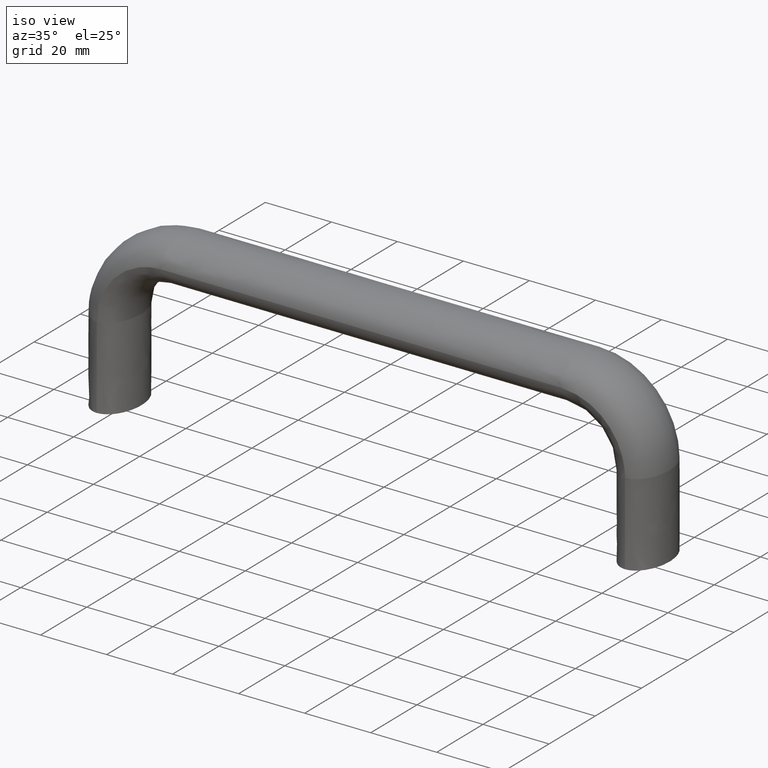
[diagram: clean part render]
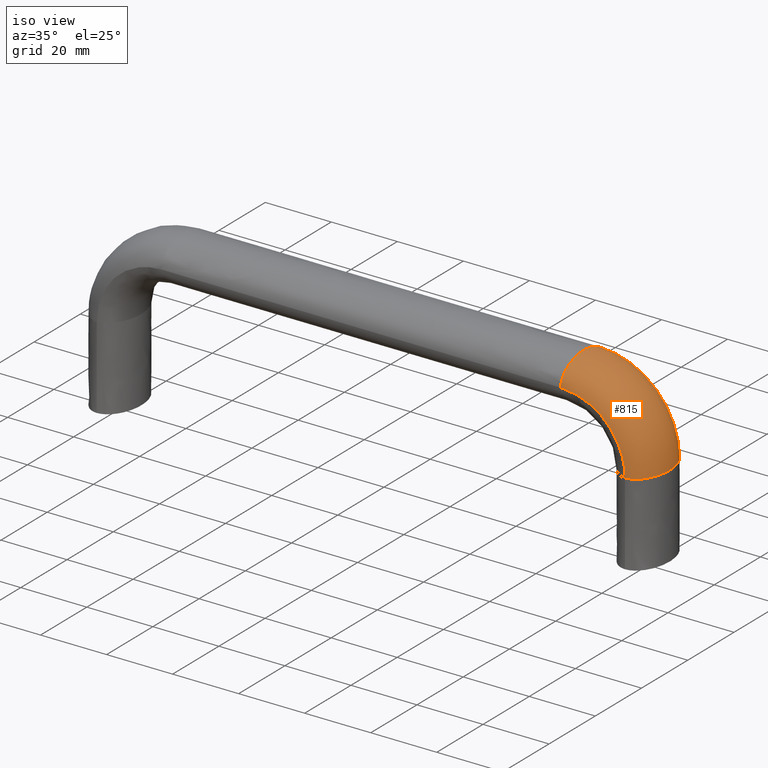
[diagram: same view with one face highlighted and labeled with its STEP entity id]
A machine part, iso view. The second image highlights one B-rep face of the part: STEP entity #815.
In plain terms, the highlighted face is a freeform B-spline surface patch.
Its self-contained STEP definition (entity closure, byte-faithful):
#457=CARTESIAN_POINT('',(162.765148685947910,9.039503756473197,25.0));
#458=VERTEX_POINT('',#457);
#459=CARTESIAN_POINT('',(160.000007000000010,-10.0,25.0));
#460=VERTEX_POINT('',#459);
#461=CARTESIAN_POINT('',(162.765148685947910,9.039503756473197,25.0));
#462=CARTESIAN_POINT('',(163.442849478418710,8.550381046053946,25.0));
#463=CARTESIAN_POINT('',(164.066757527875210,7.885596350076813,25.0));
#464=CARTESIAN_POINT('',(165.799481873463490,5.219866587632820,25.0));
#465=CARTESIAN_POINT('',(166.500007000000010,2.617993877991495,25.0));
#466=CARTESIAN_POINT('',(166.500007000000010,-2.617993877991495,25.0));
#467=CARTESIAN_POINT('',(165.799481873463490,-5.219866587632820,25.0));
#468=CARTESIAN_POINT('',(163.392920281961490,-8.922269036098131,25.0));
#469=CARTESIAN_POINT('',(161.701703020694510,-10.0,25.0));
#470=CARTESIAN_POINT('',(160.000007000000010,-10.0,25.0));
#471=B_SPLINE_CURVE_WITH_KNOTS('',3,(#461,#462,#463,#464,#465,#466,#467,#468,#469,#470),.UNSPECIFIED.,.F.,.U.,(4,2,2,2,4),(0.570000000030455,0.625000000000000,0.750000000000000,0.875000000000000,1.0),.UNSPECIFIED.);
#472=EDGE_CURVE('',#458,#460,#471,.T.);
#562=CARTESIAN_POINT('',(160.000007000000010,10.0,25.0));
#563=VERTEX_POINT('',#562);
#564=CARTESIAN_POINT('',(160.000007000000010,10.0,25.0));
#565=CARTESIAN_POINT('',(160.952956772003490,10.0,25.0));
#566=CARTESIAN_POINT('',(161.902620405047710,9.662023569426289,25.0));
#567=CARTESIAN_POINT('',(162.765148685947910,9.039503756473197,25.0));
#568=B_SPLINE_CURVE_WITH_KNOTS('',3,(#564,#565,#566,#567),.UNSPECIFIED.,.F.,.U.,(4,4),(0.500000000000000,0.570000000030455),.UNSPECIFIED.);
#569=EDGE_CURVE('',#563,#458,#568,.T.);
#603=CARTESIAN_POINT('',(156.870789612720390,8.755444309404471,25.0));
#604=VERTEX_POINT('',#603);
#618=CARTESIAN_POINT('',(156.870789612720390,8.755444309404471,25.0));
#619=CARTESIAN_POINT('',(157.826128193318790,9.558561397163917,25.0));
#620=CARTESIAN_POINT('',(158.910921546728500,10.0,25.0));
#621=CARTESIAN_POINT('',(160.000007000000010,10.0,25.0));
#622=B_SPLINE_CURVE_WITH_KNOTS('',3,(#618,#619,#620,#621),.UNSPECIFIED.,.F.,.U.,(4,4),(0.419999999998018,0.500000000000000),.UNSPECIFIED.);
#623=EDGE_CURVE('',#604,#563,#622,.T.);
#628=CARTESIAN_POINT('',(140.500007000000010,8.755444309434322,41.370790612755883));
#629=CARTESIAN_POINT('',(140.500007000000010,9.558561397185795,42.326129193372502));
#630=CARTESIAN_POINT('',(140.500007000000010,10.0,43.410922546755401));
#631=CARTESIAN_POINT('',(140.500007000000010,10.0,46.201704020694301));
#632=CARTESIAN_POINT('',(140.500007000000010,8.922269036098131,47.892921281961200));
#633=CARTESIAN_POINT('',(140.500007000000010,5.219866587632820,50.299482873463603));
#634=CARTESIAN_POINT('',(140.500007000000010,2.617993877991495,51.000007999999902));
#635=CARTESIAN_POINT('',(140.500007000000010,-2.617993877991495,51.000007999999902));
#636=CARTESIAN_POINT('',(140.500007000000010,-5.219866587632820,50.299482873463603));
#637=CARTESIAN_POINT('',(140.500007000000010,-8.922269036098131,47.892921281961200));
#638=CARTESIAN_POINT('',(140.500007000000010,-10.0,46.201704020694301));
#639=CARTESIAN_POINT('',(140.500007000000010,-10.0,44.500007999999852));
#640=CARTESIAN_POINT('',(142.643237786018200,8.755444309434322,41.361462487404573));
#641=CARTESIAN_POINT('',(142.768311226753010,9.558561397185795,42.316505935075888));
#642=CARTESIAN_POINT('',(142.910333084827190,10.0,43.400986049985342));
#643=CARTESIAN_POINT('',(143.275704385580610,10.0,46.191028352413397));
#644=CARTESIAN_POINT('',(143.497120124775990,8.922269036098131,47.881850823062400));
#645=CARTESIAN_POINT('',(143.812189611099600,5.219866587632820,50.287901282744400));
#646=CARTESIAN_POINT('',(143.903903107397010,2.617993877991495,50.988287623581400));
#647=CARTESIAN_POINT('',(143.903903107397010,-2.617993877991495,50.988287623581400));
#648=CARTESIAN_POINT('',(143.812189611099600,-5.219866587632820,50.287901282744400));
#649=CARTESIAN_POINT('',(143.497120124775990,-8.922269036098131,47.881850823052801));
#650=CARTESIAN_POINT('',(143.275704385580610,-10.0,46.191028352413397));
#651=CARTESIAN_POINT('',(143.052917007059110,-10.0,44.489783046054882));
#652=CARTESIAN_POINT('',(144.785024816638410,8.755444309434322,40.944694918063043));
#653=CARTESIAN_POINT('',(145.035082674932710,9.558561397185795,41.875168590072661));
#654=CARTESIAN_POINT('',(145.319025046930390,10.0,42.931727673285373));
#655=CARTESIAN_POINT('',(146.049506210935190,10.0,45.649872568219699));
#656=CARTESIAN_POINT('',(146.492178761658810,8.922269036098131,47.297071966624301));
#657=CARTESIAN_POINT('',(147.122091181861010,5.219866587632820,49.640997195234398));
#658=CARTESIAN_POINT('',(147.305452156051390,2.617993877991495,50.323289525972399));
#659=CARTESIAN_POINT('',(147.305452156051390,-2.617993877991495,50.323289525972399));
#660=CARTESIAN_POINT('',(147.122091181861010,-5.219866587632820,49.640997195234398));
#661=CARTESIAN_POINT('',(146.492178761658810,-8.922269036098131,47.297071966615498));
#662=CARTESIAN_POINT('',(146.049506210935190,-10.0,45.649872568219699));
#663=CARTESIAN_POINT('',(145.604090867047490,-10.0,43.992467144483683));
#664=CARTESIAN_POINT('',(148.744643744865810,8.755444309434322,39.304567056170733));
#665=CARTESIAN_POINT('',(149.225770380773890,9.558561397185795,40.139328906661248));
#666=CARTESIAN_POINT('',(149.772092896535100,10.0,41.087206575838067));
#667=CARTESIAN_POINT('',(151.177583399386010,10.0,43.525753447871452));
#668=CARTESIAN_POINT('',(152.029312501496010,8.922269036098131,45.003516074895302));
#669=CARTESIAN_POINT('',(153.241302581361990,5.219866587632820,47.106336842519099));
#670=CARTESIAN_POINT('',(153.594100326932990,2.617993877991495,47.718446164614498));
#671=CARTESIAN_POINT('',(153.594100326932990,-2.617993877991495,47.718446164614498));
#672=CARTESIAN_POINT('',(153.241302581361990,-5.219866587632820,47.106336842519099));
#673=CARTESIAN_POINT('',(152.029312501496010,-8.922269036098131,45.003516074904198));
#674=CARTESIAN_POINT('',(151.177583399386010,-10.0,43.525753447871452));
#675=CARTESIAN_POINT('',(150.320576995191000,-10.0,42.038834623456417));
#676=CARTESIAN_POINT('',(150.560617836575800,8.755444309434322,38.091171961059658));
#677=CARTESIAN_POINT('',(151.147718032333900,9.558561397185795,38.855124542660860));
#678=CARTESIAN_POINT('',(151.814374234697790,10.0,39.722597813011930));
#679=CARTESIAN_POINT('',(153.529439849069010,10.0,41.954293208726362));
#680=CARTESIAN_POINT('',(154.568771877826490,8.922269036098131,43.306703567754603));
#681=CARTESIAN_POINT('',(156.047716421853010,5.219866587632820,45.231151065125502));
#682=CARTESIAN_POINT('',(156.478221843973500,2.617993877991495,45.791337777726902));
#683=CARTESIAN_POINT('',(156.478221843973500,-2.617993877991495,45.791337777726902));
#684=CARTESIAN_POINT('',(156.047716421853010,-5.219866587632820,45.231151065125502));
#685=CARTESIAN_POINT('',(154.568771877826490,-8.922269036098131,43.306703567745700));
#686=CARTESIAN_POINT('',(153.529439849069010,-10.0,41.954293208726362));
#687=CARTESIAN_POINT('',(152.483668132989010,-10.0,40.593503333295153));
#688=CARTESIAN_POINT('',(153.591178961045190,8.755444309434322,35.060610836561423));
#689=CARTESIAN_POINT('',(154.355131542653510,9.558561397185795,35.647711032326512));
#690=CARTESIAN_POINT('',(155.222604813016010,10.0,36.314367234701749));
#691=CARTESIAN_POINT('',(157.454300208708500,10.0,38.029432849051297));
#692=CARTESIAN_POINT('',(158.806710567754490,8.922269036098131,39.068764877826148));
#693=CARTESIAN_POINT('',(160.731158065116490,5.219866587632820,40.547709421844203));
#694=CARTESIAN_POINT('',(161.291344777727010,2.617993877991495,40.978214843973447));
#695=CARTESIAN_POINT('',(161.291344777727010,-2.617993877991495,40.978214843973447));
#696=CARTESIAN_POINT('',(160.731158065116490,-5.219866587632820,40.547709421844203));
#697=CARTESIAN_POINT('',(158.806710567754490,-8.922269036098131,39.068764877835051));
#698=CARTESIAN_POINT('',(157.454300208708500,-10.0,38.029432849051297));
#699=CARTESIAN_POINT('',(156.093510333286300,-10.0,36.983661132980053));
#700=CARTESIAN_POINT('',(154.804574056194500,8.755444309434322,33.244636744771341));
#701=CARTESIAN_POINT('',(155.639335906685490,9.558561397185795,33.725763380665711));
#702=CARTESIAN_POINT('',(156.587213575863810,10.0,34.272085896414389));
#703=CARTESIAN_POINT('',(159.025760447933490,10.0,35.677576399279751));
#704=CARTESIAN_POINT('',(160.503523074957510,8.922269036098131,36.529305501389537));
#705=CARTESIAN_POINT('',(162.606343842598510,5.219866587632820,37.741295581229053));
#706=CARTESIAN_POINT('',(163.218453164667490,2.617993877991495,38.094093326791402));
#707=CARTESIAN_POINT('',(163.218453164667490,-2.617993877991495,38.094093326791402));
#708=CARTESIAN_POINT('',(162.606343842598510,-5.219866587632820,37.741295581229053));
#709=CARTESIAN_POINT('',(160.503523074957510,-8.922269036098131,36.529305501380698));
#710=CARTESIAN_POINT('',(159.025760447933490,-10.0,35.677576399279751));
#711=CARTESIAN_POINT('',(157.538841623500700,-10.0,34.820569995093550));
#712=CARTESIAN_POINT('',(156.444701918039190,8.755444309434322,29.285017816733038));
#713=CARTESIAN_POINT('',(157.375175590048400,9.558561397185795,29.535075675041000));
#714=CARTESIAN_POINT('',(158.431734673259600,10.0,29.819018047051149));
#715=CARTESIAN_POINT('',(161.149879568157500,10.0,30.549499211041450));
#716=CARTESIAN_POINT('',(162.797078966562510,8.922269036098131,30.992171761765050));
#717=CARTESIAN_POINT('',(165.141004195154490,5.219866587632820,31.622084181993849));
#718=CARTESIAN_POINT('',(165.823296525919010,2.617993877991495,31.805445156193262));
#719=CARTESIAN_POINT('',(165.823296525919010,-2.617993877991495,31.805445156193262));
#720=CARTESIAN_POINT('',(165.141004195154490,-5.219866587632820,31.622084181993849));
#721=CARTESIAN_POINT('',(162.797078966562510,-8.922269036098131,30.992171761773900));
#722=CARTESIAN_POINT('',(161.149879568157500,-10.0,30.549499211041450));
#723=CARTESIAN_POINT('',(159.492474144439310,-10.0,30.104083867144919));
#724=CARTESIAN_POINT('',(156.870764474815390,8.755444309434322,27.143280771251082));
#725=CARTESIAN_POINT('',(157.826100787062700,9.558561397185795,27.268354742716799));
#726=CARTESIAN_POINT('',(158.910891494318690,10.0,27.410377074501319));
#727=CARTESIAN_POINT('',(161.701665946343500,10.0,27.775749235911100));
#728=CARTESIAN_POINT('',(163.392878781409510,8.922269036098131,27.997165248402300));
#729=CARTESIAN_POINT('',(165.799433911713490,5.219866587632820,28.312234922386050));
#730=CARTESIAN_POINT('',(166.499957125285500,2.617993877991495,28.403948437609799));
#731=CARTESIAN_POINT('',(166.499957125285500,-2.617993877991495,28.403948437609799));
#732=CARTESIAN_POINT('',(165.799433911713490,-5.219866587632820,28.312234922386050));
#733=CARTESIAN_POINT('',(163.392878781409510,-8.922269036098131,27.997165248395650));
#734=CARTESIAN_POINT('',(161.701665946343500,-10.0,27.775749235911100));
#735=CARTESIAN_POINT('',(159.999974207304010,-10.0,27.552961332612451));
#736=CARTESIAN_POINT('',(156.870789612755910,8.755444309434322,25.0));
#737=CARTESIAN_POINT('',(157.826128193372510,9.558561397185795,25.0));
#738=CARTESIAN_POINT('',(158.910921546755500,10.0,25.0));
#739=CARTESIAN_POINT('',(161.701703020694510,10.0,25.0));
#740=CARTESIAN_POINT('',(163.392920281961490,8.922269036098131,25.0));
#741=CARTESIAN_POINT('',(165.799481873463490,5.219866587632820,25.0));
#742=CARTESIAN_POINT('',(166.500007000000010,2.617993877991495,25.0));
#743=CARTESIAN_POINT('',(166.500007000000010,-2.617993877991495,25.0));
#744=CARTESIAN_POINT('',(165.799481873463490,-5.219866587632820,25.0));
#745=CARTESIAN_POINT('',(163.392920281961490,-8.922269036098131,25.0));
#746=CARTESIAN_POINT('',(161.701703020694510,-10.0,25.0));
#747=CARTESIAN_POINT('',(160.000007000000010,-10.0,25.0));
#748=B_SPLINE_SURFACE_WITH_KNOTS('',3,3,((#628,#640,#652,#664,#676,#688,#700,#712,#724,#736),(#629,#641,#653,#665,#677,#689,#701,#713,#725,#737),(#630,#642,#654,#666,#678,#690,#702,#714,#726,#738),(#631,#643,#655,#667,#679,#691,#703,#715,#727,#739),(#632,#644,#656,#668,#680,#692,#704,#716,#728,#740),(#633,#645,#657,#669,#681,#693,#705,#717,#729,#741),(#634,#646,#658,#670,#682,#694,#706,#718,#730,#742),(#635,#647,#659,#671,#683,#695,#707,#719,#731,#743),(#636,#648,#660,#672,#684,#696,#708,#720,#732,#744),(#637,#649,#661,#673,#685,#697,#709,#721,#733,#745),(#638,#650,#662,#674,#686,#698,#710,#722,#734,#746),(#639,#651,#663,#675,#687,#699,#711,#723,#735,#747)),.UNSPECIFIED.,.F.,.F.,.U.,(4,2,2,2,2,4),(4,2,2,2,4),(0.0,4.923917860288117,12.617539516988300,20.311161173688479,28.004782830388660,35.698404487088837),(0.0,10.123008709068261,20.246017418136550,30.369026127205110,40.492034836273362),.UNSPECIFIED.);
#749=ORIENTED_EDGE('',*,*,#623,.F.);
#750=CARTESIAN_POINT('',(140.500007000000010,8.755444309404465,41.370790612720363));
#751=VERTEX_POINT('',#750);
#752=CARTESIAN_POINT('',(140.500007000000010,8.755444309404465,41.370790612720363));
#753=CARTESIAN_POINT('',(142.643237786018290,8.755444309434322,41.361462487404573));
#754=CARTESIAN_POINT('',(144.785024816638500,8.755444309434322,40.944694918063028));
#755=CARTESIAN_POINT('',(148.744643744865810,8.755444309434322,39.304567056170733));
#756=CARTESIAN_POINT('',(150.560617836575800,8.755444309434322,38.091171961059672));
#757=CARTESIAN_POINT('',(153.591178961045190,8.755444309434322,35.060610836561423));
#758=CARTESIAN_POINT('',(154.804574056194500,8.755444309434322,33.244636744771341));
#759=CARTESIAN_POINT('',(156.444701918039190,8.755444309434322,29.285017816733038));
#760=CARTESIAN_POINT('',(156.870764474815390,8.755444309434322,27.143280771251089));
#761=CARTESIAN_POINT('',(156.870789612720390,8.755444309404471,25.0));
#762=B_SPLINE_CURVE_WITH_KNOTS('',3,(#752,#753,#754,#755,#756,#757,#758,#759,#760,#761),.UNSPECIFIED.,.F.,.U.,(4,2,2,2,4),(0.760482762476378,0.793452697125142,0.826422631773906,0.859392566422671,0.892362501071435),.UNSPECIFIED.);
#763=EDGE_CURVE('',#751,#604,#762,.T.);
#764=ORIENTED_EDGE('',*,*,#763,.F.);
#765=CARTESIAN_POINT('',(140.500007000000010,10.0,44.500007999999852));
#766=VERTEX_POINT('',#765);
#767=CARTESIAN_POINT('',(140.500007000000010,8.755444309404465,41.370790612720363));
#768=CARTESIAN_POINT('',(140.500007000000010,9.558561397163913,42.326129193318721));
#769=CARTESIAN_POINT('',(140.500007000000010,10.0,43.410922546728408));
#770=CARTESIAN_POINT('',(140.500007000000010,10.0,44.500007999999852));
#771=B_SPLINE_CURVE_WITH_KNOTS('',3,(#767,#768,#769,#770),.UNSPECIFIED.,.F.,.U.,(4,4),(0.419999999998017,0.500000000000000),.UNSPECIFIED.);
#772=EDGE_CURVE('',#751,#766,#771,.T.);
#773=ORIENTED_EDGE('',*,*,#772,.T.);
#774=CARTESIAN_POINT('',(140.500007000000010,9.039503756675209,47.265149685667708));
#775=VERTEX_POINT('',#774);
#776=CARTESIAN_POINT('',(140.500007000000010,10.0,44.500007999999852));
#777=CARTESIAN_POINT('',(140.500007000000010,10.0,45.452957771797188));
#778=CARTESIAN_POINT('',(140.500007000000010,9.662023569572522,46.402621404636598));
#779=CARTESIAN_POINT('',(140.500007000000010,9.039503756675209,47.265149685667708));
#780=B_SPLINE_CURVE_WITH_KNOTS('',3,(#776,#777,#778,#779),.UNSPECIFIED.,.F.,.U.,(4,4),(0.500000000000000,0.570000000015311),.UNSPECIFIED.);
#781=EDGE_CURVE('',#766,#775,#780,.T.);
#782=ORIENTED_EDGE('',*,*,#781,.T.);
#783=CARTESIAN_POINT('',(140.500007000000010,-10.0,44.500007999999852));
#784=VERTEX_POINT('',#783);
#785=CARTESIAN_POINT('',(140.500007000000010,9.039503756675209,47.265149685667708));
#786=CARTESIAN_POINT('',(140.500007000000010,8.550381046420030,47.942850478074888));
#787=CARTESIAN_POINT('',(140.500007000000010,7.885596350301086,48.566758527729263));
#788=CARTESIAN_POINT('',(140.500007000000010,5.219866587632820,50.299482873463603));
#789=CARTESIAN_POINT('',(140.500007000000010,2.617993877991495,51.000007999999902));
#790=CARTESIAN_POINT('',(140.500007000000010,-2.617993877991495,51.000007999999902));
#791=CARTESIAN_POINT('',(140.500007000000010,-5.219866587632820,50.299482873463603));
#792=CARTESIAN_POINT('',(140.500007000000010,-8.922269036098131,47.892921281961200));
#793=CARTESIAN_POINT('',(140.500007000000010,-10.0,46.201704020694301));
#794=CARTESIAN_POINT('',(140.500007000000010,-10.0,44.500007999999852));
#795=B_SPLINE_CURVE_WITH_KNOTS('',3,(#785,#786,#787,#788,#789,#790,#791,#792,#793,#794),.UNSPECIFIED.,.F.,.U.,(4,2,2,2,4),(0.570000000015312,0.625000000000000,0.750000000000000,0.875000000000000,1.0),.UNSPECIFIED.);
#796=EDGE_CURVE('',#775,#784,#795,.T.);
#797=ORIENTED_EDGE('',*,*,#796,.T.);
#798=CARTESIAN_POINT('',(140.500007000000010,-10.0,44.500007999999852));
#799=CARTESIAN_POINT('',(143.052917007059110,-10.0,44.489783046054882));
#800=CARTESIAN_POINT('',(145.604090867047490,-10.0,43.992467144483683));
#801=CARTESIAN_POINT('',(150.320576995191000,-10.0,42.038834623456417));
#802=CARTESIAN_POINT('',(152.483668132989010,-10.0,40.593503333295153));
#803=CARTESIAN_POINT('',(156.093510333286300,-10.0,36.983661132980053));
#804=CARTESIAN_POINT('',(157.538841623500700,-10.0,34.820569995093550));
#805=CARTESIAN_POINT('',(159.492474144439310,-10.0,30.104083867144919));
#806=CARTESIAN_POINT('',(159.999974207304010,-10.0,27.552961332612451));
#807=CARTESIAN_POINT('',(160.000007000000010,-10.0,25.0));
#808=B_SPLINE_CURVE_WITH_KNOTS('',3,(#798,#799,#800,#801,#802,#803,#804,#805,#806,#807),.UNSPECIFIED.,.F.,.U.,(4,2,2,2,4),(0.760482762476378,0.793452697125142,0.826422631773906,0.859392566422671,0.892362501071435),.UNSPECIFIED.);
#809=EDGE_CURVE('',#784,#460,#808,.T.);
#810=ORIENTED_EDGE('',*,*,#809,.T.);
#811=ORIENTED_EDGE('',*,*,#472,.F.);
#812=ORIENTED_EDGE('',*,*,#569,.F.);
#813=EDGE_LOOP('',(#749,#764,#773,#782,#797,#810,#811,#812));
#814=FACE_OUTER_BOUND('',#813,.T.);
#815=ADVANCED_FACE('',(#814),#748,.T.);